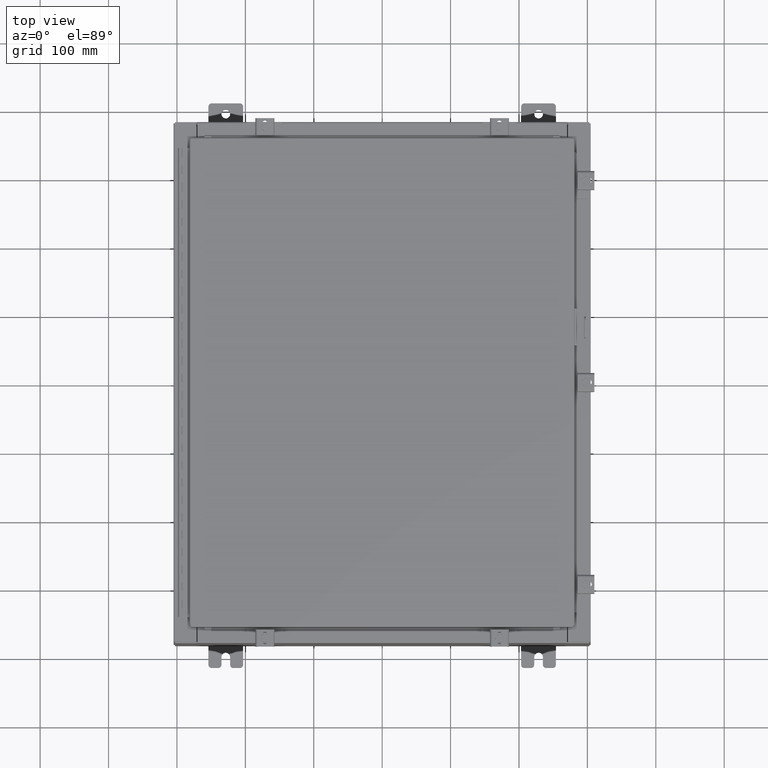
[diagram: clean part render]
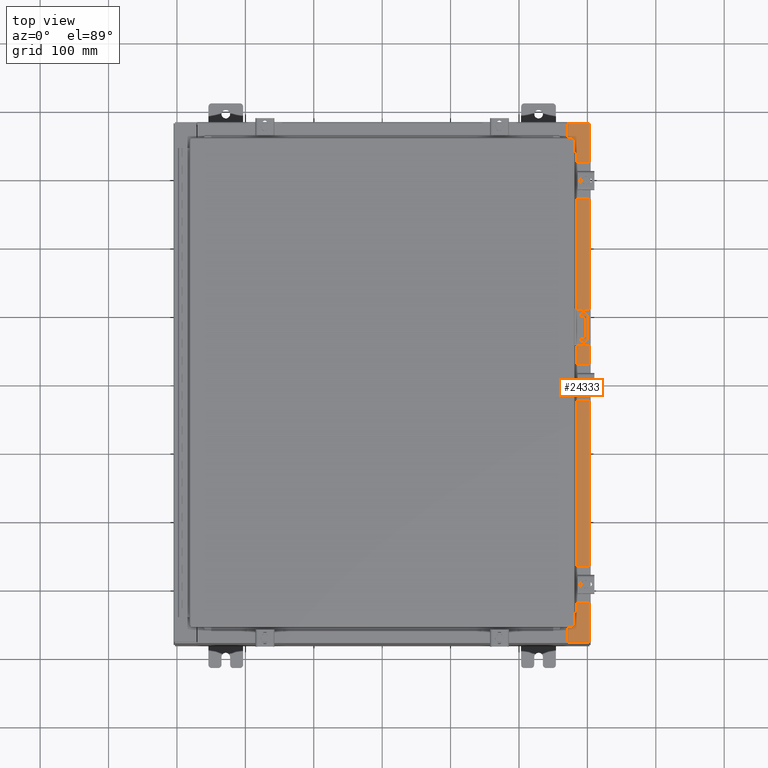
[diagram: same view with one face highlighted and labeled with its STEP entity id]
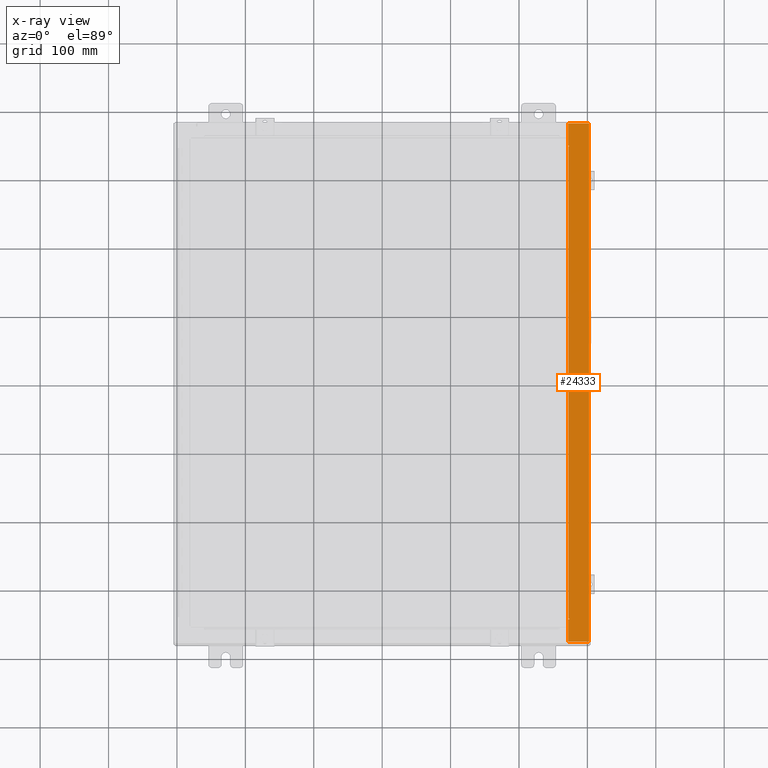
[diagram: x-ray of the same camera — body ghosted, the highlighted face saturated]
A machine part, top view. The second image highlights one B-rep face of the part: STEP entity #24333.
The next image is the same camera in x-ray: the body ghosted, the highlighted face saturated — about 0% of this face is hidden behind the body in this view.
In plain terms, the highlighted planar face has unit normal (-0, 0, -1).
Its self-contained STEP definition (entity closure, byte-faithful):
#764 = CARTESIAN_POINT ( 'NONE',  ( 10.69970000000003200, -13.63109999999999800, 9.925300000000008900 ) ) ;
#1143 = DIRECTION ( 'NONE',  ( 1.000000000000000000, 0.0000000000000000000, 0.0000000000000000000 ) ) ;
#1549 = CARTESIAN_POINT ( 'NONE',  ( 10.69970000000003200, -13.63109999999999800, 9.925300000000008900 ) ) ;
#1847 = VERTEX_POINT ( 'NONE', #10655 ) ;
#2494 = ORIENTED_EDGE ( 'NONE', *, *, #5523, .F. ) ;
#2852 = DIRECTION ( 'NONE',  ( -5.135634964896009300E-031, -1.000000000000000000, 2.747344792763031300E-045 ) ) ;
#2975 = ORIENTED_EDGE ( 'NONE', *, *, #28628, .F. ) ;
#3045 = DIRECTION ( 'NONE',  ( -1.000000000000000000, 0.0000000000000000000, 0.0000000000000000000 ) ) ;
#3273 = EDGE_CURVE ( 'NONE', #7135, #6180, #16727, .T. ) ;
#3615 = CARTESIAN_POINT ( 'NONE',  ( 11.91230000000003200, -14.92529999999999800, 9.925300000000001800 ) ) ;
#3662 = DIRECTION ( 'NONE',  ( -0.0000000000000000000, -1.000000000000000000, -0.0000000000000000000 ) ) ;
#3931 = ORIENTED_EDGE ( 'NONE', *, *, #15489, .F. ) ;
#4279 = EDGE_CURVE ( 'NONE', #21349, #36799, #15730, .T. ) ;
#4456 = CARTESIAN_POINT ( 'NONE',  ( 10.75005000000003400, 13.63109999999999800, 9.925300000000008900 ) ) ;
#4893 = DIRECTION ( 'NONE',  ( -0.0000000000000000000, 1.000000000000000000, -0.0000000000000000000 ) ) ;
#5445 = VERTEX_POINT ( 'NONE', #8166 ) ;
#5523 = EDGE_CURVE ( 'NONE', #36799, #27856, #8395, .T. ) ;
#5703 = CIRCLE ( 'NONE', #25012, 0.01867499999999949400 ) ;
#6180 = VERTEX_POINT ( 'NONE', #22045 ) ;
#7135 = VERTEX_POINT ( 'NONE', #1549 ) ;
#7738 = CARTESIAN_POINT ( 'NONE',  ( 10.75005000000003400, 13.59375000000000000, 9.925300000000008900 ) ) ;
#7826 = CARTESIAN_POINT ( 'NONE',  ( 11.91230000000003200, -14.92529999999999800, 9.925300000000001800 ) ) ;
#8166 = CARTESIAN_POINT ( 'NONE',  ( 10.75005000000003400, -13.59375000000000000, 9.925300000000008900 ) ) ;
#8395 = LINE ( 'NONE', #4456, #15209 ) ;
#8420 = EDGE_CURVE ( 'NONE', #10426, #21955, #31799, .T. ) ;
#8535 = DIRECTION ( 'NONE',  ( 5.349571789159788500E-015, 0.0000000000000000000, 1.000000000000000000 ) ) ;
#8664 = CARTESIAN_POINT ( 'NONE',  ( 10.75005000000003400, 13.61242500000000000, 9.925300000000008900 ) ) ;
#8747 = DIRECTION ( 'NONE',  ( 1.000000000000000000, 0.0000000000000000000, 0.0000000000000000000 ) ) ;
#9166 = EDGE_CURVE ( 'NONE', #7135, #18172, #23682, .T. ) ;
#9572 = PLANE ( 'NONE',  #11415 ) ;
#9783 = CARTESIAN_POINT ( 'NONE',  ( 10.71270000000003500, -13.59375000000000000, 9.925300000000008900 ) ) ;
#10144 = EDGE_CURVE ( 'NONE', #18132, #35269, #30335, .T. ) ;
#10426 = VERTEX_POINT ( 'NONE', #24381 ) ;
#10655 = CARTESIAN_POINT ( 'NONE',  ( 10.69970000000003200, 14.92529999999999800, 9.925300000000008900 ) ) ;
#11171 = VECTOR ( 'NONE', #36392, 39.37007874015748100 ) ;
#11415 = AXIS2_PLACEMENT_3D ( 'NONE', #32676, #15410, #35564 ) ;
#12070 = EDGE_CURVE ( 'NONE', #5445, #18132, #32431, .T. ) ;
#12096 = ORIENTED_EDGE ( 'NONE', *, *, #4279, .F. ) ;
#12798 = CARTESIAN_POINT ( 'NONE',  ( 10.69970000000003200, 13.63109999999999800, 9.925300000000008900 ) ) ;
#13488 = LINE ( 'NONE', #22583, #33770 ) ;
#14274 = EDGE_CURVE ( 'NONE', #10426, #1847, #13488, .T. ) ;
#15209 = VECTOR ( 'NONE', #3045, 39.37007874015748100 ) ;
#15410 = DIRECTION ( 'NONE',  ( -5.349571789159788500E-015, 0.0000000000000000000, -1.000000000000000000 ) ) ;
#15489 = EDGE_CURVE ( 'NONE', #6180, #5445, #5703, .T. ) ;
#15649 = ORIENTED_EDGE ( 'NONE', *, *, #9166, .T. ) ;
#15730 = CIRCLE ( 'NONE', #21459, 0.01867499999999949400 ) ;
#16251 = CARTESIAN_POINT ( 'NONE',  ( 10.71270000000003500, 13.59375000000000000, 9.925300000000008900 ) ) ;
#16727 = LINE ( 'NONE', #764, #19488 ) ;
#17068 = LINE ( 'NONE', #16251, #11171 ) ;
#18132 = VERTEX_POINT ( 'NONE', #25575 ) ;
#18137 = DIRECTION ( 'NONE',  ( -1.000000000000000000, 0.0000000000000000000, 0.0000000000000000000 ) ) ;
#18172 = VERTEX_POINT ( 'NONE', #37270 ) ;
#18721 = FACE_OUTER_BOUND ( 'NONE', #21163, .T. ) ;
#18867 = EDGE_CURVE ( 'NONE', #18172, #21955, #36194, .T. ) ;
#19316 = ORIENTED_EDGE ( 'NONE', *, *, #8420, .F. ) ;
#19488 = VECTOR ( 'NONE', #1143, 39.37007874015748100 ) ;
#19913 = CARTESIAN_POINT ( 'NONE',  ( 10.75005000000003400, -13.59375000000000000, 9.925300000000008900 ) ) ;
#20280 = ORIENTED_EDGE ( 'NONE', *, *, #10144, .F. ) ;
#20939 = DIRECTION ( 'NONE',  ( 1.000000000000000000, 0.0000000000000000000, 0.0000000000000000000 ) ) ;
#20982 = DIRECTION ( 'NONE',  ( 5.349571789159788500E-015, 0.0000000000000000000, 1.000000000000000000 ) ) ;
#21053 = CARTESIAN_POINT ( 'NONE',  ( 10.75005000000003400, -13.61242500000000000, 9.925300000000008900 ) ) ;
#21163 = EDGE_LOOP ( 'NONE', ( #29646, #15649, #32796, #19316, #24750, #26566, #2494, #12096, #2975, #20280, #36026, #3931 ) ) ;
#21219 = CARTESIAN_POINT ( 'NONE',  ( 10.75005000000003400, 13.63109999999999800, 9.925300000000008900 ) ) ;
#21349 = VERTEX_POINT ( 'NONE', #7738 ) ;
#21459 = AXIS2_PLACEMENT_3D ( 'NONE', #8664, #8535, #8747 ) ;
#21955 = VERTEX_POINT ( 'NONE', #7826 ) ;
#22045 = CARTESIAN_POINT ( 'NONE',  ( 10.75005000000003400, -13.63109999999999800, 9.925300000000008900 ) ) ;
#22235 = DIRECTION ( 'NONE',  ( -1.000000000000000000, 4.861730685829018000E-063, 5.349571789159789300E-015 ) ) ;
#22583 = CARTESIAN_POINT ( 'NONE',  ( 5.335691853495958500E-014, 14.92529999999999800, 9.925300000000065700 ) ) ;
#23682 = LINE ( 'NONE', #25719, #32214 ) ;
#24333 = ADVANCED_FACE ( 'NONE', ( #18721 ), #9572, .F. ) ;
#24381 = CARTESIAN_POINT ( 'NONE',  ( 11.91230000000003200, 14.92529999999999800, 9.925300000000001800 ) ) ;
#24560 = LINE ( 'NONE', #34502, #31249 ) ;
#24750 = ORIENTED_EDGE ( 'NONE', *, *, #14274, .T. ) ;
#24817 = VECTOR ( 'NONE', #18137, 39.37007874015748100 ) ;
#25012 = AXIS2_PLACEMENT_3D ( 'NONE', #21053, #20982, #20939 ) ;
#25092 = VECTOR ( 'NONE', #3662, 39.37007874015748100 ) ;
#25423 = DIRECTION ( 'NONE',  ( -5.135634964896009300E-031, -1.000000000000000000, 2.747344792763031300E-045 ) ) ;
#25575 = CARTESIAN_POINT ( 'NONE',  ( 10.71270000000003500, -13.59375000000000000, 9.925300000000008900 ) ) ;
#25719 = CARTESIAN_POINT ( 'NONE',  ( 10.69970000000003200, -5.494975343389772900E-030, 9.925300000000008900 ) ) ;
#26566 = ORIENTED_EDGE ( 'NONE', *, *, #37209, .T. ) ;
#27856 = VERTEX_POINT ( 'NONE', #12798 ) ;
#28602 = VECTOR ( 'NONE', #33089, 39.37007874015748100 ) ;
#28628 = EDGE_CURVE ( 'NONE', #35269, #21349, #17068, .T. ) ;
#29460 = VECTOR ( 'NONE', #4893, 39.37007874015748100 ) ;
#29646 = ORIENTED_EDGE ( 'NONE', *, *, #3273, .F. ) ;
#30335 = LINE ( 'NONE', #9783, #29460 ) ;
#31249 = VECTOR ( 'NONE', #2852, 39.37007874015748100 ) ;
#31799 = LINE ( 'NONE', #3615, #25092 ) ;
#32214 = VECTOR ( 'NONE', #25423, 39.37007874015748100 ) ;
#32431 = LINE ( 'NONE', #19913, #24817 ) ;
#32676 = CARTESIAN_POINT ( 'NONE',  ( 5.335691853495958500E-014, 0.0000000000000000000, 9.925300000000065700 ) ) ;
#32796 = ORIENTED_EDGE ( 'NONE', *, *, #18867, .T. ) ;
#33089 = DIRECTION ( 'NONE',  ( 1.000000000000000000, 1.305543112181250400E-031, -5.349571789159789300E-015 ) ) ;
#33234 = CARTESIAN_POINT ( 'NONE',  ( 5.335691853495958500E-014, -14.92529999999999800, 9.925300000000065700 ) ) ;
#33770 = VECTOR ( 'NONE', #22235, 39.37007874015748100 ) ;
#34502 = CARTESIAN_POINT ( 'NONE',  ( 10.69970000000003200, -5.494975343389772900E-030, 9.925300000000008900 ) ) ;
#35269 = VERTEX_POINT ( 'NONE', #37127 ) ;
#35564 = DIRECTION ( 'NONE',  ( -1.000000000000000000, 0.0000000000000000000, 5.349571789159788500E-015 ) ) ;
#36026 = ORIENTED_EDGE ( 'NONE', *, *, #12070, .F. ) ;
#36194 = LINE ( 'NONE', #33234, #28602 ) ;
#36392 = DIRECTION ( 'NONE',  ( 1.000000000000000000, 0.0000000000000000000, 0.0000000000000000000 ) ) ;
#36799 = VERTEX_POINT ( 'NONE', #21219 ) ;
#37127 = CARTESIAN_POINT ( 'NONE',  ( 10.71270000000003500, 13.59375000000000000, 9.925300000000008900 ) ) ;
#37209 = EDGE_CURVE ( 'NONE', #1847, #27856, #24560, .T. ) ;
#37270 = CARTESIAN_POINT ( 'NONE',  ( 10.69970000000003200, -14.92529999999999800, 9.925300000000008900 ) ) ;